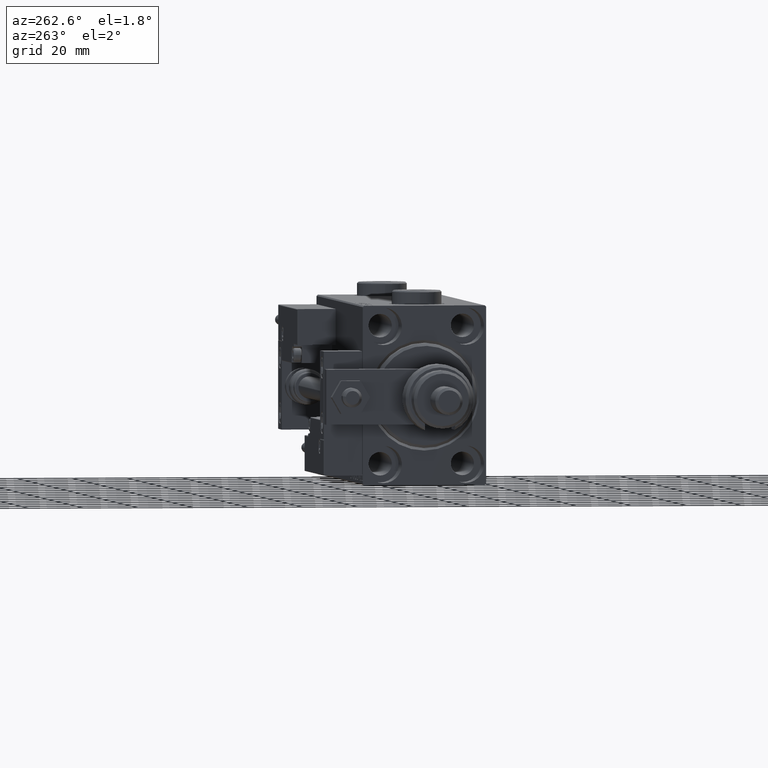
[diagram: clean part render]
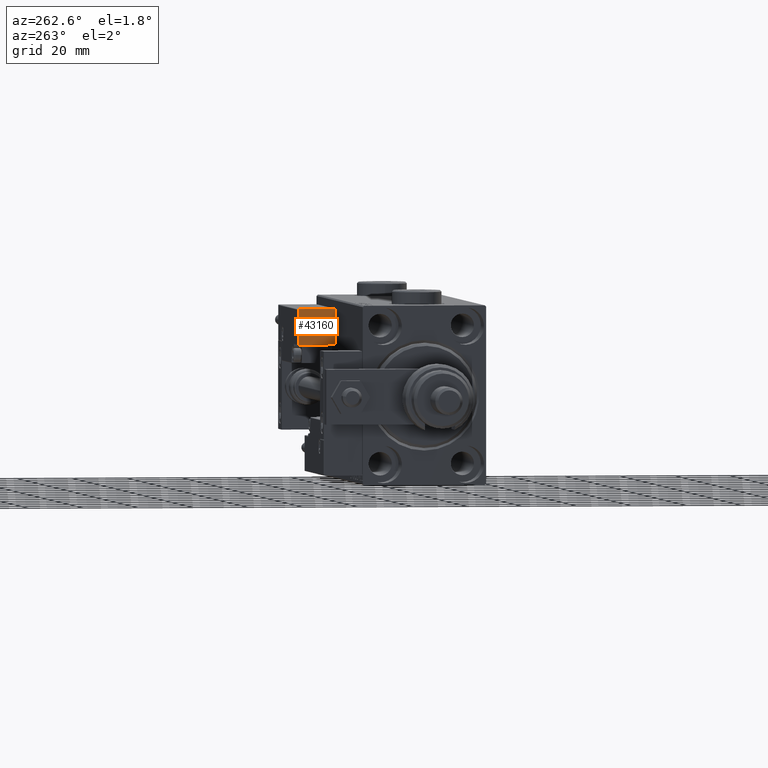
[diagram: same view with one face highlighted and labeled with its STEP entity id]
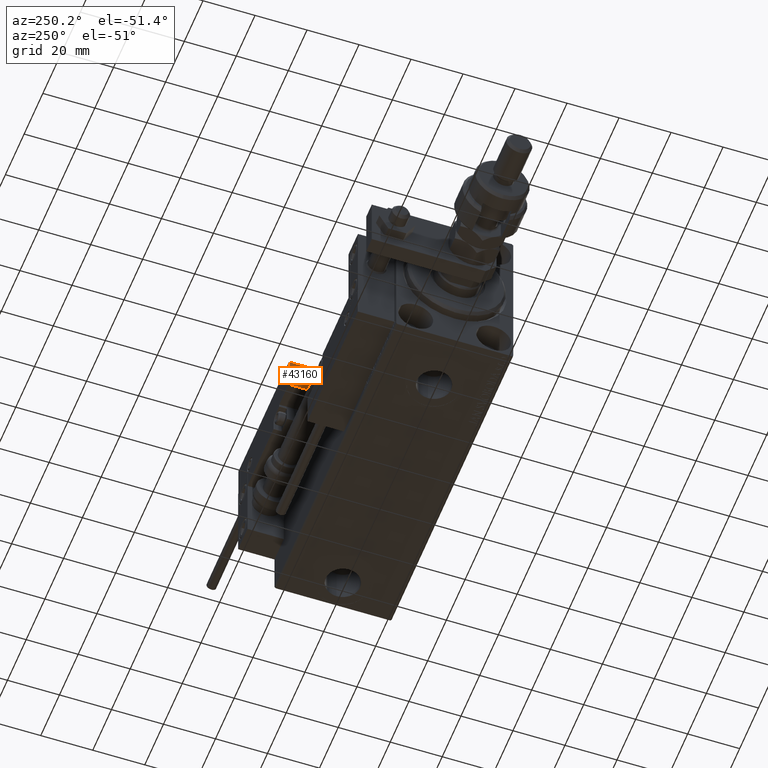
[diagram: same view with one face highlighted and labeled with its STEP entity id]
A machine part, auxiliary view. The second image highlights one B-rep face of the part: STEP entity #43160.
A second angle (auxiliary view) of the same face is appended — the face is thin or edge-on in the first view.
In plain terms, the highlighted planar face has unit normal (1, -0, -0).
Its self-contained STEP definition (entity closure, byte-faithful):
#2190 = VERTEX_POINT ( 'NONE', #24693 ) ;
#3320 = VECTOR ( 'NONE', #4087, 1000.000000000000000 ) ;
#4087 = DIRECTION ( 'NONE',  ( -0.000000000000000000, -0.000000000000000000, -1.000000000000000000 ) ) ;
#5085 = VECTOR ( 'NONE', #46070, 1000.000000000000000 ) ;
#5249 = PLANE ( 'NONE',  #34072 ) ;
#5348 = VECTOR ( 'NONE', #28618, 1000.000000000000000 ) ;
#8183 = EDGE_CURVE ( 'NONE', #39718, #36052, #40956, .T. ) ;
#8285 = LINE ( 'NONE', #21742, #43408 ) ;
#9818 = ORIENTED_EDGE ( 'NONE', *, *, #29227, .T. ) ;
#11025 = CARTESIAN_POINT ( 'NONE',  ( 27.00000000000006395, 20.00000000000001776, 14.00000000000000000 ) ) ;
#12210 = DIRECTION ( 'NONE',  ( 0.000000000000000000, 0.000000000000000000, 1.000000000000000000 ) ) ;
#15383 = CARTESIAN_POINT ( 'NONE',  ( 27.00000000000006395, 7.000000000000007994, 13.70000000000000107 ) ) ;
#16612 = CARTESIAN_POINT ( 'NONE',  ( 27.00000000000006395, 7.000000000000007994, 14.00000000000000000 ) ) ;
#17285 = CARTESIAN_POINT ( 'NONE',  ( 27.00000000000006395, 20.00000000000001776, 0.000000000000000000 ) ) ;
#18629 = ORIENTED_EDGE ( 'NONE', *, *, #8183, .F. ) ;
#19512 = EDGE_CURVE ( 'NONE', #2190, #36052, #8285, .T. ) ;
#21742 = CARTESIAN_POINT ( 'NONE',  ( 27.00000000000006395, 7.000000000000007994, 0.000000000000000000 ) ) ;
#23887 = CARTESIAN_POINT ( 'NONE',  ( 27.00000000000006395, 7.000000000000007994, 14.00000000000000000 ) ) ;
#24016 = ORIENTED_EDGE ( 'NONE', *, *, #26578, .T. ) ;
#24693 = CARTESIAN_POINT ( 'NONE',  ( 27.00000000000006395, 7.000000000000007994, 0.000000000000000000 ) ) ;
#26137 = DIRECTION ( 'NONE',  ( 0.000000000000000000, 1.000000000000000000, 0.000000000000000000 ) ) ;
#26578 = EDGE_CURVE ( 'NONE', #30679, #2190, #33227, .T. ) ;
#27053 = CARTESIAN_POINT ( 'NONE',  ( 27.00000000000006395, 20.00000000000001776, 13.70000000000000107 ) ) ;
#28618 = DIRECTION ( 'NONE',  ( -0.000000000000000000, -0.000000000000000000, -1.000000000000000000 ) ) ;
#29227 = EDGE_CURVE ( 'NONE', #39718, #30679, #29344, .T. ) ;
#29344 = LINE ( 'NONE', #29605, #5085 ) ;
#29605 = CARTESIAN_POINT ( 'NONE',  ( 27.00000000000006395, 7.000000000000007994, 13.70000000000000107 ) ) ;
#30679 = VERTEX_POINT ( 'NONE', #15383 ) ;
#33227 = LINE ( 'NONE', #23887, #3320 ) ;
#34072 = AXIS2_PLACEMENT_3D ( 'NONE', #16612, #42883, #12210 ) ;
#36052 = VERTEX_POINT ( 'NONE', #17285 ) ;
#36945 = FACE_OUTER_BOUND ( 'NONE', #53908, .T. ) ;
#39423 = ORIENTED_EDGE ( 'NONE', *, *, #19512, .T. ) ;
#39718 = VERTEX_POINT ( 'NONE', #27053 ) ;
#40956 = LINE ( 'NONE', #11025, #5348 ) ;
#42883 = DIRECTION ( 'NONE',  ( -1.000000000000000000, 0.000000000000000000, 0.000000000000000000 ) ) ;
#43160 = ADVANCED_FACE ( 'NONE', ( #36945 ), #5249, .F. ) ;
#43408 = VECTOR ( 'NONE', #26137, 1000.000000000000000 ) ;
#46070 = DIRECTION ( 'NONE',  ( -0.000000000000000000, -1.000000000000000000, -0.000000000000000000 ) ) ;
#53908 = EDGE_LOOP ( 'NONE', ( #18629, #9818, #24016, #39423 ) ) ;